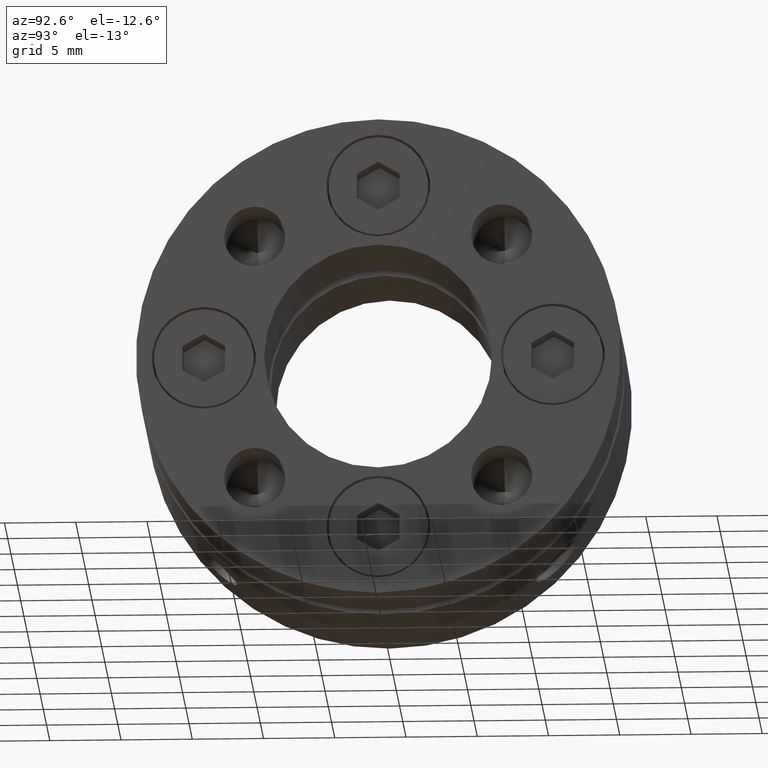
[diagram: clean part render]
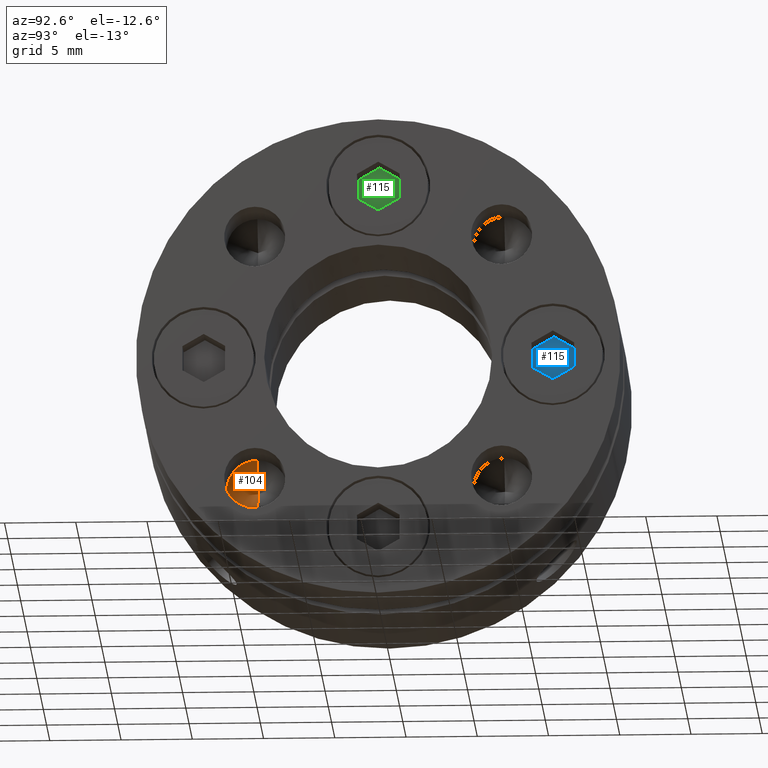
[diagram: same view with three faces highlighted in distinct colors, each labeled with its STEP entity id]
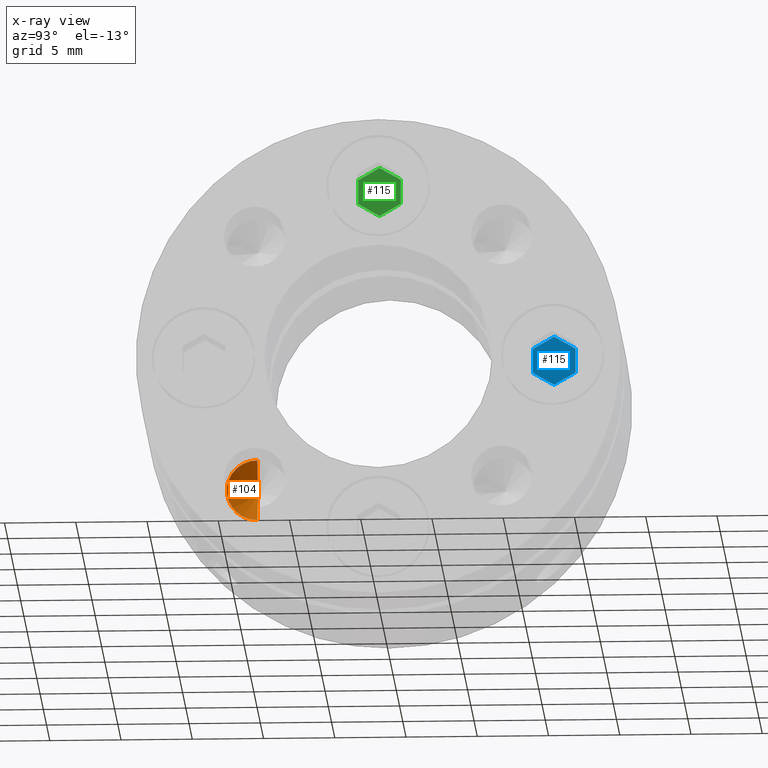
[diagram: x-ray of the same camera — body ghosted, the three highlighted faces saturated]
A machine part, auxiliary view with three faces highlighted in distinct colors.
The next image is the same camera in x-ray (body ghosted, the three faces saturated) — at least one of them is partly hidden behind the body in this view.
Their STEP definitions:

[orange] entity #104 — the highlighted conical surface has half-angle 59 deg.
#104 = ADVANCED_FACE ( 'NONE', ( #342 ), #349, .F. ) ;
#342 = FACE_OUTER_BOUND ( 'NONE', #2556, .T. ) ;
#349 = CONICAL_SURFACE ( 'NONE', #528, 2.149999999221465800, 1.029744257416750800 ) ;
#506 = AXIS2_PLACEMENT_3D ( 'NONE', #1672, #1673, #1674 ) ;
#528 = AXIS2_PLACEMENT_3D ( 'NONE', #3058, #3057, #3051 ) ;
#934 = CIRCLE ( 'NONE', #506, 2.149999999999999000 ) ;
#955 = LINE ( 'NONE', #1702, #962 ) ;
#957 = LINE ( 'NONE', #1706, #960 ) ;
#960 = VECTOR ( 'NONE', #1708, 1000.000000000000000 ) ;
#962 = VECTOR ( 'NONE', #1709, 1000.000000000000000 ) ;
#1219 = ORIENTED_EDGE ( 'NONE', *, *, #1394, .F. ) ;
#1380 = EDGE_CURVE ( 'NONE', #2663, #2664, #934, .T. ) ;
#1394 = EDGE_CURVE ( 'NONE', #2723, #2664, #957, .T. ) ;
#1395 = EDGE_CURVE ( 'NONE', #2723, #2663, #955, .T. ) ;
#1510 = ORIENTED_EDGE ( 'NONE', *, *, #1380, .T. ) ;
#1672 = CARTESIAN_POINT ( 'NONE',  ( 14.00000000000000000, -8.662058069535207800, -8.662058069535207800 ) ) ;
#1673 = DIRECTION ( 'NONE',  ( 1.000000000000000000, 0.0000000000000000000, 0.0000000000000000000 ) ) ;
#1674 = DIRECTION ( 'NONE',  ( 0.0000000000000000000, 0.0000000000000000000, -1.000000000000000000 ) ) ;
#1702 = CARTESIAN_POINT ( 'NONE',  ( 14.00000000120371600, -8.662058069535207800, -6.512058070313742100 ) ) ;
#1706 = CARTESIAN_POINT ( 'NONE',  ( 14.00000000120371600, -8.662058069535207800, -10.81205806875667400 ) ) ;
#1708 = DIRECTION ( 'NONE',  ( 0.5150380759900024000, 0.0000000000000000000, -0.8571673000532139500 ) ) ;
#1709 = DIRECTION ( 'NONE',  ( 0.5150380759900024000, 1.049727190343947300E-016, 0.8571673000532139500 ) ) ;
#1944 = CARTESIAN_POINT ( 'NONE',  ( 14.00000000000000000, -8.662058069535207800, -6.512058072317061400 ) ) ;
#1948 = CARTESIAN_POINT ( 'NONE',  ( 14.00000000000000000, -8.662058069535207800, -10.81205806675335300 ) ) ;
#2006 = CARTESIAN_POINT ( 'NONE',  ( 12.70814966727584800, -8.662058069660361100, -8.662058069535207800 ) ) ;
#2513 = ORIENTED_EDGE ( 'NONE', *, *, #1395, .T. ) ;
#2556 = EDGE_LOOP ( 'NONE', ( #1219, #2513, #1510 ) ) ;
#2663 = VERTEX_POINT ( 'NONE', #1944 ) ;
#2664 = VERTEX_POINT ( 'NONE', #1948 ) ;
#2723 = VERTEX_POINT ( 'NONE', #2006 ) ;
#3051 = DIRECTION ( 'NONE',  ( 0.0000000000000000000, 0.0000000000000000000, -1.000000000000000000 ) ) ;
#3057 = DIRECTION ( 'NONE',  ( 1.000000000000000000, 0.0000000000000000000, -0.0000000000000000000 ) ) ;
#3058 = CARTESIAN_POINT ( 'NONE',  ( 14.00000000120371600, -8.662058069535207800, -8.662058069535207800 ) ) ;

[blue] entity #115 — the highlighted planar face has unit normal (-1, 0, 0).
#115 = ADVANCED_FACE ( 'NONE', ( #362 ), #3091, .F. ) ;
#362 = FACE_OUTER_BOUND ( 'NONE', #2570, .T. ) ;
#384 = LINE ( 'NONE', #3126, #387 ) ;
#387 = VECTOR ( 'NONE', #3127, 1000.000000000000000 ) ;
#389 = LINE ( 'NONE', #3132, #394 ) ;
#394 = VECTOR ( 'NONE', #3139, 1000.000000000000000 ) ;
#403 = LINE ( 'NONE', #3156, #406 ) ;
#406 = VECTOR ( 'NONE', #3157, 1000.000000000000000 ) ;
#419 = LINE ( 'NONE', #3171, #422 ) ;
#422 = VECTOR ( 'NONE', #3172, 1000.000000000000100 ) ;
#646 = AXIS2_PLACEMENT_3D ( 'NONE', #3089, #3094, #3095 ) ;
#783 = VECTOR ( 'NONE', #3411, 1000.000000000000000 ) ;
#784 = LINE ( 'NONE', #3410, #783 ) ;
#785 = LINE ( 'NONE', #3414, #788 ) ;
#788 = VECTOR ( 'NONE', #3415, 1000.000000000000000 ) ;
#1232 = EDGE_CURVE ( 'NONE', #2694, #2789, #384, .T. ) ;
#1236 = EDGE_CURVE ( 'NONE', #2789, #2796, #389, .T. ) ;
#1243 = EDGE_CURVE ( 'NONE', #2771, #2694, #403, .T. ) ;
#1251 = EDGE_CURVE ( 'NONE', #2766, #2771, #419, .T. ) ;
#1281 = EDGE_CURVE ( 'NONE', #2796, #2739, #784, .T. ) ;
#1283 = EDGE_CURVE ( 'NONE', #2739, #2766, #785, .T. ) ;
#1977 = CARTESIAN_POINT ( 'NONE',  ( 1.500000000000000000, 2.000000000000000000, 0.8660254037844387100 ) ) ;
#2022 = CARTESIAN_POINT ( 'NONE',  ( -1.499999999999999800, 2.000000000000000000, -0.8660254037844386000 ) ) ;
#2049 = CARTESIAN_POINT ( 'NONE',  ( -1.499999999999999100, 2.000000000000000000, 0.8660254037844393700 ) ) ;
#2054 = CARTESIAN_POINT ( 'NONE',  ( 4.046263255784118500E-016, 2.000000000000000000, 1.732050807568877400 ) ) ;
#2072 = CARTESIAN_POINT ( 'NONE',  ( 1.499999999999999800, 2.000000000000000000, -0.8660254037844389300 ) ) ;
#2079 = CARTESIAN_POINT ( 'NONE',  ( -1.767567020076689400E-016, 2.000000000000000000, -1.732050807568877200 ) ) ;
#2247 = ORIENTED_EDGE ( 'NONE', *, *, #1236, .T. ) ;
#2260 = ORIENTED_EDGE ( 'NONE', *, *, #1243, .T. ) ;
#2261 = ORIENTED_EDGE ( 'NONE', *, *, #1251, .T. ) ;
#2296 = ORIENTED_EDGE ( 'NONE', *, *, #1281, .T. ) ;
#2303 = ORIENTED_EDGE ( 'NONE', *, *, #1232, .T. ) ;
#2335 = ORIENTED_EDGE ( 'NONE', *, *, #1283, .T. ) ;
#2570 = EDGE_LOOP ( 'NONE', ( #2247, #2296, #2335, #2261, #2260, #2303 ) ) ;
#2694 = VERTEX_POINT ( 'NONE', #1977 ) ;
#2739 = VERTEX_POINT ( 'NONE', #2022 ) ;
#2766 = VERTEX_POINT ( 'NONE', #2049 ) ;
#2771 = VERTEX_POINT ( 'NONE', #2054 ) ;
#2789 = VERTEX_POINT ( 'NONE', #2072 ) ;
#2796 = VERTEX_POINT ( 'NONE', #2079 ) ;
#3089 = CARTESIAN_POINT ( 'NONE',  ( 1.499999999999999800, 2.000000000000000000, -0.8660254037844389300 ) ) ;
#3091 = PLANE ( 'NONE',  #646 ) ;
#3094 = DIRECTION ( 'NONE',  ( 0.0000000000000000000, -1.000000000000000000, 0.0000000000000000000 ) ) ;
#3095 = DIRECTION ( 'NONE',  ( 0.0000000000000000000, -0.0000000000000000000, -1.000000000000000000 ) ) ;
#3126 = CARTESIAN_POINT ( 'NONE',  ( 1.500000000000000000, 2.000000000000000000, 0.8660254037844387100 ) ) ;
#3127 = DIRECTION ( 'NONE',  ( -1.251928832280965900E-016, 0.0000000000000000000, -1.000000000000000000 ) ) ;
#3132 = CARTESIAN_POINT ( 'NONE',  ( 1.499999999999999800, 2.000000000000000000, -0.8660254037844389300 ) ) ;
#3139 = DIRECTION ( 'NONE',  ( -0.8660254037844387100, 0.0000000000000000000, -0.4999999999999998300 ) ) ;
#3156 = CARTESIAN_POINT ( 'NONE',  ( 4.046263255784118500E-016, 2.000000000000000000, 1.732050807568877400 ) ) ;
#3157 = DIRECTION ( 'NONE',  ( 0.8660254037844386000, 0.0000000000000000000, -0.5000000000000001100 ) ) ;
#3171 = CARTESIAN_POINT ( 'NONE',  ( -1.499999999999999100, 2.000000000000000000, 0.8660254037844393700 ) ) ;
#3172 = DIRECTION ( 'NONE',  ( 0.8660254037844387100, 0.0000000000000000000, 0.4999999999999998300 ) ) ;
#3410 = CARTESIAN_POINT ( 'NONE',  ( -1.767567020076689400E-016, 2.000000000000000000, -1.732050807568877200 ) ) ;
#3411 = DIRECTION ( 'NONE',  ( -0.8660254037844386000, 0.0000000000000000000, 0.5000000000000001100 ) ) ;
#3414 = CARTESIAN_POINT ( 'NONE',  ( -1.499999999999999800, 2.000000000000000000, -0.8660254037844386000 ) ) ;
#3415 = DIRECTION ( 'NONE',  ( 3.755786496842897100E-016, 0.0000000000000000000, 1.000000000000000000 ) ) ;

[green] entity #115 — the highlighted planar face has unit normal (-1, 0, 0).
#115 = ADVANCED_FACE ( 'NONE', ( #362 ), #3091, .F. ) ;
#362 = FACE_OUTER_BOUND ( 'NONE', #2570, .T. ) ;
#384 = LINE ( 'NONE', #3126, #387 ) ;
#387 = VECTOR ( 'NONE', #3127, 1000.000000000000000 ) ;
#389 = LINE ( 'NONE', #3132, #394 ) ;
#394 = VECTOR ( 'NONE', #3139, 1000.000000000000000 ) ;
#403 = LINE ( 'NONE', #3156, #406 ) ;
#406 = VECTOR ( 'NONE', #3157, 1000.000000000000000 ) ;
#419 = LINE ( 'NONE', #3171, #422 ) ;
#422 = VECTOR ( 'NONE', #3172, 1000.000000000000100 ) ;
#646 = AXIS2_PLACEMENT_3D ( 'NONE', #3089, #3094, #3095 ) ;
#783 = VECTOR ( 'NONE', #3411, 1000.000000000000000 ) ;
#784 = LINE ( 'NONE', #3410, #783 ) ;
#785 = LINE ( 'NONE', #3414, #788 ) ;
#788 = VECTOR ( 'NONE', #3415, 1000.000000000000000 ) ;
#1232 = EDGE_CURVE ( 'NONE', #2694, #2789, #384, .T. ) ;
#1236 = EDGE_CURVE ( 'NONE', #2789, #2796, #389, .T. ) ;
#1243 = EDGE_CURVE ( 'NONE', #2771, #2694, #403, .T. ) ;
#1251 = EDGE_CURVE ( 'NONE', #2766, #2771, #419, .T. ) ;
#1281 = EDGE_CURVE ( 'NONE', #2796, #2739, #784, .T. ) ;
#1283 = EDGE_CURVE ( 'NONE', #2739, #2766, #785, .T. ) ;
#1977 = CARTESIAN_POINT ( 'NONE',  ( 1.500000000000000000, 2.000000000000000000, 0.8660254037844387100 ) ) ;
#2022 = CARTESIAN_POINT ( 'NONE',  ( -1.499999999999999800, 2.000000000000000000, -0.8660254037844386000 ) ) ;
#2049 = CARTESIAN_POINT ( 'NONE',  ( -1.499999999999999100, 2.000000000000000000, 0.8660254037844393700 ) ) ;
#2054 = CARTESIAN_POINT ( 'NONE',  ( 4.046263255784118500E-016, 2.000000000000000000, 1.732050807568877400 ) ) ;
#2072 = CARTESIAN_POINT ( 'NONE',  ( 1.499999999999999800, 2.000000000000000000, -0.8660254037844389300 ) ) ;
#2079 = CARTESIAN_POINT ( 'NONE',  ( -1.767567020076689400E-016, 2.000000000000000000, -1.732050807568877200 ) ) ;
#2247 = ORIENTED_EDGE ( 'NONE', *, *, #1236, .T. ) ;
#2260 = ORIENTED_EDGE ( 'NONE', *, *, #1243, .T. ) ;
#2261 = ORIENTED_EDGE ( 'NONE', *, *, #1251, .T. ) ;
#2296 = ORIENTED_EDGE ( 'NONE', *, *, #1281, .T. ) ;
#2303 = ORIENTED_EDGE ( 'NONE', *, *, #1232, .T. ) ;
#2335 = ORIENTED_EDGE ( 'NONE', *, *, #1283, .T. ) ;
#2570 = EDGE_LOOP ( 'NONE', ( #2247, #2296, #2335, #2261, #2260, #2303 ) ) ;
#2694 = VERTEX_POINT ( 'NONE', #1977 ) ;
#2739 = VERTEX_POINT ( 'NONE', #2022 ) ;
#2766 = VERTEX_POINT ( 'NONE', #2049 ) ;
#2771 = VERTEX_POINT ( 'NONE', #2054 ) ;
#2789 = VERTEX_POINT ( 'NONE', #2072 ) ;
#2796 = VERTEX_POINT ( 'NONE', #2079 ) ;
#3089 = CARTESIAN_POINT ( 'NONE',  ( 1.499999999999999800, 2.000000000000000000, -0.8660254037844389300 ) ) ;
#3091 = PLANE ( 'NONE',  #646 ) ;
#3094 = DIRECTION ( 'NONE',  ( 0.0000000000000000000, -1.000000000000000000, 0.0000000000000000000 ) ) ;
#3095 = DIRECTION ( 'NONE',  ( 0.0000000000000000000, -0.0000000000000000000, -1.000000000000000000 ) ) ;
#3126 = CARTESIAN_POINT ( 'NONE',  ( 1.500000000000000000, 2.000000000000000000, 0.8660254037844387100 ) ) ;
#3127 = DIRECTION ( 'NONE',  ( -1.251928832280965900E-016, 0.0000000000000000000, -1.000000000000000000 ) ) ;
#3132 = CARTESIAN_POINT ( 'NONE',  ( 1.499999999999999800, 2.000000000000000000, -0.8660254037844389300 ) ) ;
#3139 = DIRECTION ( 'NONE',  ( -0.8660254037844387100, 0.0000000000000000000, -0.4999999999999998300 ) ) ;
#3156 = CARTESIAN_POINT ( 'NONE',  ( 4.046263255784118500E-016, 2.000000000000000000, 1.732050807568877400 ) ) ;
#3157 = DIRECTION ( 'NONE',  ( 0.8660254037844386000, 0.0000000000000000000, -0.5000000000000001100 ) ) ;
#3171 = CARTESIAN_POINT ( 'NONE',  ( -1.499999999999999100, 2.000000000000000000, 0.8660254037844393700 ) ) ;
#3172 = DIRECTION ( 'NONE',  ( 0.8660254037844387100, 0.0000000000000000000, 0.4999999999999998300 ) ) ;
#3410 = CARTESIAN_POINT ( 'NONE',  ( -1.767567020076689400E-016, 2.000000000000000000, -1.732050807568877200 ) ) ;
#3411 = DIRECTION ( 'NONE',  ( -0.8660254037844386000, 0.0000000000000000000, 0.5000000000000001100 ) ) ;
#3414 = CARTESIAN_POINT ( 'NONE',  ( -1.499999999999999800, 2.000000000000000000, -0.8660254037844386000 ) ) ;
#3415 = DIRECTION ( 'NONE',  ( 3.755786496842897100E-016, 0.0000000000000000000, 1.000000000000000000 ) ) ;